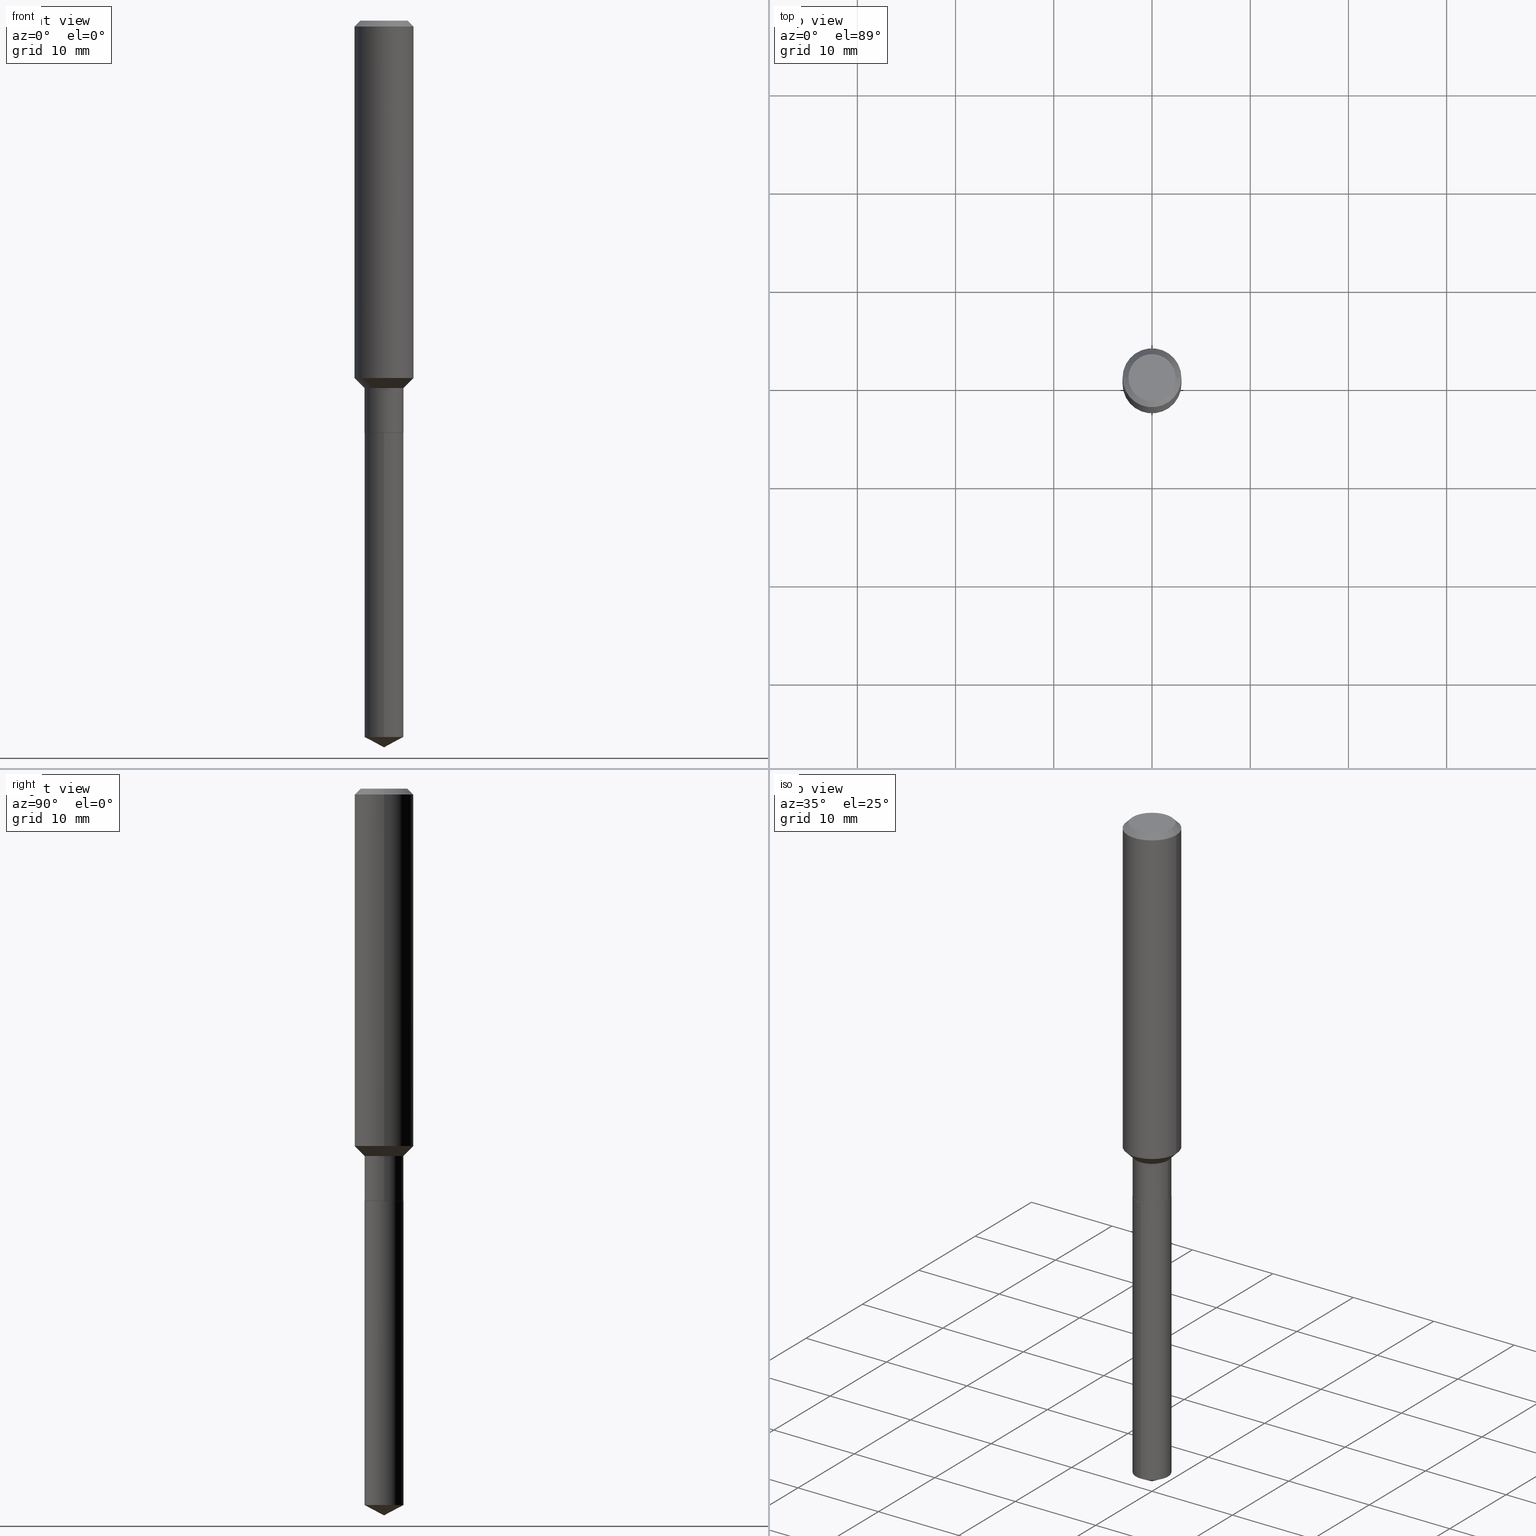
[diagram: canonical four-view strip — front | top / right | iso, engineering-drawing reading convention]
A machine part, canonical four-view strip (front | top / right | iso — engineering-drawing reading convention). The complete STEP part file that produces these views, byte-faithful:
ISO-10303-21;
HEADER;
FILE_DESCRIPTION (( 'STEP AP203' ),
    '1' );
FILE_NAME ('54803.STEP',
    '2024-04-24T15:46:13',
    ( '' ),
    ( '' ),
    'SwSTEP 2.0',
    'SolidWorks 2023',
    '' );
FILE_SCHEMA (( 'CONFIG_CONTROL_DESIGN' ));
ENDSEC;

DATA;
#1 = CALENDAR_DATE ( 2024, 24, 4 ) ;
#2 = CARTESIAN_POINT ( 'NONE',  ( 4.039180827175989564E-29, -5.766879727367222870E-15, -1.651699999999999724 ) ) ;
#3 = ADVANCED_FACE ( 'NONE', ( #420 ), #459, .T. ) ;
#4 = DIRECTION ( 'NONE',  ( 1.000000000000000000, 0.000000000000000000, 0.000000000000000000 ) ) ;
#5 = CARTESIAN_POINT ( 'NONE',  ( -8.915147929202214824E-28, 1.272937490397425409E-13, 36.45707874015747763 ) ) ;
#6 = CC_DESIGN_DATE_AND_TIME_ASSIGNMENT ( #151, #145, ( #445 ) ) ;
#7 = DIRECTION ( 'NONE',  ( 1.000000000000000000, -6.982962677686267499E-15, 4.876176775795936353E-29 ) ) ;
#8 = AXIS2_PLACEMENT_3D ( 'NONE', #2, #113, #77 ) ;
#9 = FACE_OUTER_BOUND ( 'NONE', #258, .T. ) ;
#10 = CALENDAR_DATE ( 2024, 24, 4 ) ;
#11 = DIRECTION ( 'NONE',  ( -2.445385636632390677E-29, 3.491600442376394663E-15, 1.000000000000000000 ) ) ;
#12 = DATE_TIME_ROLE ( 'classification_date' ) ;
#13 = DIRECTION ( 'NONE',  ( 6.273719981627735311E-15, 0.8829475928589254341, 0.4694715627858938034 ) ) ;
#14 = ORIENTED_EDGE ( 'NONE', *, *, #18, .F. ) ;
#15 = CARTESIAN_POINT ( 'NONE',  ( 7.021997449434832588E-29, -1.002584133692533592E-14, -2.871473493387237674 ) ) ;
#16 = CC_DESIGN_SECURITY_CLASSIFICATION ( #46, ( #414 ) ) ;
#17 = EDGE_LOOP ( 'NONE', ( #441, #181, #453, #450 ) ) ;
#18 = EDGE_CURVE ( 'NONE', #173, #254, #191, .T. ) ;
#19 = CYLINDRICAL_SURFACE ( 'NONE', #354, 0.07810000000000000275 ) ;
#20 = DIRECTION ( 'NONE',  ( -2.445385636632390677E-29, 3.491600442376394663E-15, 1.000000000000000000 ) ) ;
#21 = DIRECTION ( 'NONE',  ( -0.7071067811865481278, 7.493145998870357316E-15, 0.7071067811865469066 ) ) ;
#22 = ORIENTED_EDGE ( 'NONE', *, *, #474, .F. ) ;
#23 = CIRCLE ( 'NONE', #413, 0.1180999999999999966 ) ;
#24 = CARTESIAN_POINT ( 'NONE',  ( 0.07760000000000000231, -6.310503371825098014E-15, -1.652199999999999669 ) ) ;
#25 = VERTEX_POINT ( 'NONE', #38 ) ;
#26 = ADVANCED_FACE ( 'NONE', ( #9 ), #265, .F. ) ;
#27 = DIRECTION ( 'NONE',  ( 1.000000000000000000, -6.982962677686266711E-15, 4.876176775795936353E-29 ) ) ;
#28 = ORIENTED_EDGE ( 'NONE', *, *, #143, .T. ) ;
#29 = CARTESIAN_POINT ( 'NONE',  ( -0.1180999999999999966, 7.422191030112725094E-16, -0.02362000000000014435 ) ) ;
#30 = VERTEX_POINT ( 'NONE', #188 ) ;
#31 = AXIS2_PLACEMENT_3D ( 'NONE', #397, #388, #55 ) ;
#32 = AXIS2_PLACEMENT_3D ( 'NONE', #437, #325, #253 ) ;
#33 = CARTESIAN_POINT ( 'NONE',  ( 3.601197363988231369E-29, -5.141555419580415048E-15, -1.472599999999999687 ) ) ;
#34 = ORIENTED_EDGE ( 'NONE', *, *, #341, .F. ) ;
#35 = DIRECTION ( 'NONE',  ( -2.445385636632390677E-29, 3.491600442376394663E-15, 1.000000000000000000 ) ) ;
#36 = DIRECTION ( 'NONE',  ( -2.445468806185136597E-29, 3.491481338843145583E-15, 1.000000000000000000 ) ) ;
#37 = ADVANCED_BREP_SHAPE_REPRESENTATION ( '54803', ( #326, #488, #471 ), #162 ) ;
#38 = CARTESIAN_POINT ( 'NONE',  ( 0.07760000000000000231, -6.310503371825098014E-15, -1.652199999999999669 ) ) ;
#39 = EDGE_CURVE ( 'NONE', #363, #319, #73, .T. ) ;
#40 = VECTOR ( 'NONE', #427, 39.37007874015748143 ) ;
#41 = ORIENTED_EDGE ( 'NONE', *, *, #314, .T. ) ;
#42 = ORIENTED_EDGE ( 'NONE', *, *, #417, .T. ) ;
#43 = CARTESIAN_POINT ( 'NONE',  ( 0.000000000000000000, 0.000000000000000000, 0.000000000000000000 ) ) ;
#44 = ORIENTED_EDGE ( 'NONE', *, *, #289, .T. ) ;
#45 = AXIS2_PLACEMENT_3D ( 'NONE', #462, #375, #70 ) ;
#46 = SECURITY_CLASSIFICATION ( '', '', #224 ) ;
#47 = CARTESIAN_POINT ( 'NONE',  ( 5.776197320209328408E-31, -8.246878922347560526E-17, -0.02362000000000014435 ) ) ;
#48 = DIRECTION ( 'NONE',  ( -6.982962677686266711E-15, -1.000000000000000000, 3.541896320645638966E-15 ) ) ;
#49 = DIRECTION ( 'NONE',  ( -1.000000000000000000, 6.982962677686266711E-15, 0.000000000000000000 ) ) ;
#50 = ADVANCED_FACE ( 'NONE', ( #270 ), #119, .T. ) ;
#51 = AXIS2_PLACEMENT_3D ( 'NONE', #433, #321, #322 ) ;
#52 = CARTESIAN_POINT ( 'NONE',  ( 0.09447999999999998066, -7.704367267948738690E-16, -2.700101262759583929E-17 ) ) ;
#53 = CC_DESIGN_PERSON_AND_ORGANIZATION_ASSIGNMENT ( #76, #486, ( #445 ) ) ;
#54 = DIMENSIONAL_EXPONENTS ( 1.000000000000000000, 0.000000000000000000, 0.000000000000000000, 0.000000000000000000, 0.000000000000000000, 0.000000000000000000, 0.000000000000000000 ) ;
#55 = DIRECTION ( 'NONE',  ( 1.000000000000000000, -6.982962677686269077E-15, 0.000000000000000000 ) ) ;
#56 = DIRECTION ( 'NONE',  ( 1.000000000000000000, -6.982962677686266711E-15, 4.876176775795936353E-29 ) ) ;
#57 = ORIENTED_EDGE ( 'NONE', *, *, #334, .F. ) ;
#58 = CYLINDRICAL_SURFACE ( 'NONE', #422, 0.07810000000000000275 ) ;
#59 = EDGE_CURVE ( 'NONE', #373, #178, #252, .T. ) ;
#60 = ORIENTED_EDGE ( 'NONE', *, *, #383, .T. ) ;
#61 = CARTESIAN_POINT ( 'NONE',  ( 4.040403561579081805E-29, -5.768625468036644373E-15, -1.652199999999999669 ) ) ;
#62 = ORIENTED_EDGE ( 'NONE', *, *, #289, .F. ) ;
#63 = CARTESIAN_POINT ( 'NONE',  ( 3.503378611740825749E-29, -5.001896166026689240E-15, -1.432599999999999651 ) ) ;
#64 = ORIENTED_EDGE ( 'NONE', *, *, #18, .T. ) ;
#65 = CARTESIAN_POINT ( 'NONE',  ( 5.549338766286784966E-16, 0.07809999999999422959, -1.652199999999999891 ) ) ;
#66 = ORIENTED_EDGE ( 'NONE', *, *, #406, .F. ) ;
#67 = VECTOR ( 'NONE', #84, 39.37007874015748143 ) ;
#68 = CIRCLE ( 'NONE', #32, 0.1180999999999999966 ) ;
#69 = PERSON_AND_ORGANIZATION ( #402, #361 ) ;
#70 = DIRECTION ( 'NONE',  ( 1.000000000000000000, -6.982962677686265922E-15, 4.876176775795935793E-29 ) ) ;
#71 = PERSON_AND_ORGANIZATION_ROLE ( 'classification_officer' ) ;
#72 = EDGE_CURVE ( 'NONE', #392, #173, #235, .T. ) ;
#73 = LINE ( 'NONE', #226, #403 ) ;
#74 = DIRECTION ( 'NONE',  ( 0.000000000000000000, 0.000000000000000000, 1.000000000000000000 ) ) ;
#75 = CARTESIAN_POINT ( 'NONE',  ( 0.000000000000000000, 0.000000000000000000, 0.000000000000000000 ) ) ;
#76 = PERSON_AND_ORGANIZATION ( #402, #361 ) ;
#77 = DIRECTION ( 'NONE',  ( 1.000000000000000000, -6.982962677686266711E-15, 0.000000000000000000 ) ) ;
#78 = DATE_AND_TIME ( #1, #371 ) ;
#79 = CARTESIAN_POINT ( 'NONE',  ( 5.776197320209328408E-31, -8.246878922347560526E-17, -0.02362000000000014435 ) ) ;
#80 = DIRECTION ( 'NONE',  ( -6.982962677686265133E-15, -1.000000000000000000, 3.497884755011860410E-15 ) ) ;
#81 = CONICAL_SURFACE ( 'NONE', #489, 0.07760000000000000231, 0.7853981633975507526 ) ;
#82 = CIRCLE ( 'NONE', #285, 0.07810000000000000275 ) ;
#83 = DIRECTION ( 'NONE',  ( 1.000000000000000000, -6.982962677686267499E-15, 4.875432709231658792E-29 ) ) ;
#84 = DIRECTION ( 'NONE',  ( -2.445468806185136877E-29, 3.491481338843145188E-15, 1.000000000000000000 ) ) ;
#85 = EDGE_CURVE ( 'NONE', #173, #392, #139, .T. ) ;
#86 = LINE ( 'NONE', #318, #40 ) ;
#87 = CC_DESIGN_PERSON_AND_ORGANIZATION_ASSIGNMENT ( #483, #110, ( #414 ) ) ;
#88 = EDGE_LOOP ( 'NONE', ( #146, #60, #96, #409 ) ) ;
#89 = COORDINATED_UNIVERSAL_TIME_OFFSET ( 5, 0, .BEHIND. ) ;
#90 = CONICAL_SURFACE ( 'NONE', #99, 74.04434902938190532, 1.082104136236477387 ) ;
#91 = CARTESIAN_POINT ( 'NONE',  ( 0.000000000000000000, 0.000000000000000000, 0.000000000000000000 ) ) ;
#92 = VECTOR ( 'NONE', #408, 39.37007874015748143 ) ;
#93 = ORIENTED_EDGE ( 'NONE', *, *, #417, .F. ) ;
#94 = CARTESIAN_POINT ( 'NONE',  ( 4.040403561579081805E-29, -5.768625468036644373E-15, -1.652199999999999669 ) ) ;
#95 = CARTESIAN_POINT ( 'NONE',  ( 5.549338766287084733E-16, 0.07809999999998999687, -2.871473493387238118 ) ) ;
#96 = ORIENTED_EDGE ( 'NONE', *, *, #306, .T. ) ;
#97 = VECTOR ( 'NONE', #344, 39.37007874015748143 ) ;
#98 = CARTESIAN_POINT ( 'NONE',  ( -0.1180999999999999966, -1.703031506692402969E-15, -0.02362000000000014435 ) ) ;
#99 = AXIS2_PLACEMENT_3D ( 'NONE', #463, #20, #48 ) ;
#100 = ORIENTED_EDGE ( 'NONE', *, *, #189, .F. ) ;
#101 = CARTESIAN_POINT ( 'NONE',  ( 0.000000000000000000, 0.000000000000000000, 0.000000000000000000 ) ) ;
#102 = EDGE_CURVE ( 'NONE', #25, #30, #245, .T. ) ;
#103 = ORIENTED_EDGE ( 'NONE', *, *, #212, .F. ) ;
#104 = DIRECTION ( 'NONE',  ( -2.445468806185136597E-29, 3.491481338843145583E-15, 1.000000000000000000 ) ) ;
#105 = ORIENTED_EDGE ( 'NONE', *, *, #269, .T. ) ;
#106 = CC_DESIGN_DATE_AND_TIME_ASSIGNMENT ( #320, #12, ( #46 ) ) ;
#107 = COORDINATED_UNIVERSAL_TIME_OFFSET ( 5, 0, .BEHIND. ) ;
#108 = ORIENTED_EDGE ( 'NONE', *, *, #259, .F. ) ;
#109 = CIRCLE ( 'NONE', #116, 0.07810000000000000275 ) ;
#110 = PERSON_AND_ORGANIZATION_ROLE ( 'design_supplier' ) ;
#111 = EDGE_LOOP ( 'NONE', ( #41, #267 ) ) ;
#112 = APPLICATION_PROTOCOL_DEFINITION ( 'international standard', 'config_control_design', 1994, #166 ) ;
#113 = DIRECTION ( 'NONE',  ( -2.445468806185136597E-29, 3.491481338843145583E-15, 1.000000000000000000 ) ) ;
#114 = DIRECTION ( 'NONE',  ( -2.445385636632390677E-29, 3.491600442376394663E-15, 1.000000000000000000 ) ) ;
#115 = AXIS2_PLACEMENT_3D ( 'NONE', #231, #382, #385 ) ;
#116 = AXIS2_PLACEMENT_3D ( 'NONE', #293, #248, #175 ) ;
#117 = CARTESIAN_POINT ( 'NONE',  ( 4.040403561579081805E-29, -5.768625468036644373E-15, -1.652199999999999669 ) ) ;
#118 = ORIENTED_EDGE ( 'NONE', *, *, #85, .F. ) ;
#119 = CYLINDRICAL_SURFACE ( 'NONE', #210, 0.07809999999999997500 ) ;
#120 = CARTESIAN_POINT ( 'NONE',  ( 6.603013411620882309E-46, -9.427353171913646324E-32, -2.700101262760083747E-17 ) ) ;
#121 = EDGE_CURVE ( 'NONE', #319, #313, #152, .T. ) ;
#122 = AXIS2_PLACEMENT_3D ( 'NONE', #160, #126, #247 ) ;
#123 = CIRCLE ( 'NONE', #395, 0.07809999999999997500 ) ;
#124 = FACE_OUTER_BOUND ( 'NONE', #291, .T. ) ;
#125 = CC_DESIGN_PERSON_AND_ORGANIZATION_ASSIGNMENT ( #307, #376, ( #308 ) ) ;
#126 = DIRECTION ( 'NONE',  ( 2.438088387897960049E-29, -3.491481338843145188E-15, -1.000000000000000000 ) ) ;
#127 = ORIENTED_EDGE ( 'NONE', *, *, #457, .T. ) ;
#128 = DIRECTION ( 'NONE',  ( -0.7071067811866199593, 7.493145998870616062E-15, 0.7071067811864750752 ) ) ;
#129 = AXIS2_PLACEMENT_3D ( 'NONE', #5, #114, #423 ) ;
#130 = DIRECTION ( 'NONE',  ( 1.000000000000000000, -6.982962677686269077E-15, 0.000000000000000000 ) ) ;
#131 = LOCAL_TIME ( 11, 46, 13.00000000000000000, #240 ) ;
#132 = ADVANCED_FACE ( 'NONE', ( #339 ), #194, .T. ) ;
#133 = DIRECTION ( 'NONE',  ( 1.000000000000000000, -6.982962677686267499E-15, 4.875432709231658792E-29 ) ) ;
#134 = ORIENTED_EDGE ( 'NONE', *, *, #85, .T. ) ;
#135 = CYLINDRICAL_SURFACE ( 'NONE', #387, 0.1181000000000000799 ) ;
#136 = EDGE_LOOP ( 'NONE', ( #213, #398, #22, #204 ) ) ;
#137 = ADVANCED_FACE ( 'NONE', ( #227 ), #317, .T. ) ;
#138 = CARTESIAN_POINT ( 'NONE',  ( -0.07809999999999997500, -4.586621542951776389E-15, -1.472599999999999687 ) ) ;
#139 = CIRCLE ( 'NONE', #8, 0.07810000000000000275 ) ;
#140 = ORIENTED_EDGE ( 'NONE', *, *, #383, .F. ) ;
#141 = LOCAL_TIME ( 11, 46, 13.00000000000000000, #89 ) ;
#142 = LINE ( 'NONE', #329, #195 ) ;
#143 = EDGE_CURVE ( 'NONE', #30, #25, #271, .T. ) ;
#144 = EDGE_LOOP ( 'NONE', ( #336, #280, #108 ) ) ;
#145 = DATE_TIME_ROLE ( 'creation_date' ) ;
#146 = ORIENTED_EDGE ( 'NONE', *, *, #428, .F. ) ;
#147 = APPROVAL_STATUS ( 'not_yet_approved' ) ;
#148 = DIRECTION ( 'NONE',  ( 1.000000000000000000, -6.982962677686266711E-15, 0.000000000000000000 ) ) ;
#149 = EDGE_CURVE ( 'NONE', #30, #392, #346, .T. ) ;
#150 = CC_DESIGN_APPROVAL ( #161, ( #414 ) ) ;
#151 = DATE_AND_TIME ( #260, #490 ) ;
#152 = LINE ( 'NONE', #155, #333 ) ;
#153 = VERTEX_POINT ( 'NONE', #52 ) ;
#154 = APPROVAL_ROLE ( '' ) ;
#155 = CARTESIAN_POINT ( 'NONE',  ( -5.453693851272569087E-16, -0.07810000000000577591, -1.652199999999999447 ) ) ;
#156 = CONICAL_SURFACE ( 'NONE', #434, 0.07809999999999997500, 0.7853981633974491672 ) ;
#157 = CC_DESIGN_APPROVAL ( #391, ( #445 ) ) ;
#158 = ORIENTED_EDGE ( 'NONE', *, *, #238, .F. ) ;
#159 = CARTESIAN_POINT ( 'NONE',  ( 0.1181000000000001632, -5.826584058261438292E-15, -1.432599999999999651 ) ) ;
#160 = CARTESIAN_POINT ( 'NONE',  ( 3.301506705810441154E-46, -4.713676585956823162E-32, -1.350050631380041873E-17 ) ) ;
#161 = APPROVAL ( #147, 'UNSPECIFIED' ) ;
#162 =( GEOMETRIC_REPRESENTATION_CONTEXT ( 3 ) GLOBAL_UNCERTAINTY_ASSIGNED_CONTEXT ( ( #209 ) ) GLOBAL_UNIT_ASSIGNED_CONTEXT ( ( #182, #264, #381 ) ) REPRESENTATION_CONTEXT ( 'NONE', 'WORKASPACE' ) );
#163 = DIRECTION ( 'NONE',  ( -6.982962677686265133E-15, -1.000000000000000000, 0.000000000000000000 ) ) ;
#164 = EDGE_LOOP ( 'NONE', ( #158, #288, #64, #140 ) ) ;
#165 = CARTESIAN_POINT ( 'NONE',  ( 0.07810000000000000275, -6.312249112494520306E-15, -1.651699999999999724 ) ) ;
#166 = APPLICATION_CONTEXT ( 'configuration controlled 3d designs of mechanical parts and assemblies' ) ;
#167 = LINE ( 'NONE', #469, #465 ) ;
#168 = ADVANCED_FACE ( 'NONE', ( #203 ), #357, .T. ) ;
#169 = CARTESIAN_POINT ( 'NONE',  ( 0.000000000000000000, 0.000000000000000000, 0.000000000000000000 ) ) ;
#170 = APPROVAL_PERSON_ORGANIZATION ( #237, #356, #432 ) ;
#171 = ORIENTED_EDGE ( 'NONE', *, *, #102, .F. ) ;
#172 = DIRECTION ( 'NONE',  ( -2.445385636632390677E-29, 3.491600442376394663E-15, 1.000000000000000000 ) ) ;
#173 = VERTEX_POINT ( 'NONE', #165 ) ;
#174 = ADVANCED_FACE ( 'NONE', ( #243 ), #19, .T. ) ;
#175 = DIRECTION ( 'NONE',  ( -6.982962677686265133E-15, -1.000000000000000000, 0.000000000000000000 ) ) ;
#176 = ORIENTED_EDGE ( 'NONE', *, *, #274, .F. ) ;
#177 = DIRECTION ( 'NONE',  ( -2.445468806185136597E-29, 3.491481338843145583E-15, 1.000000000000000000 ) ) ;
#178 = VERTEX_POINT ( 'NONE', #159 ) ;
#179 = AXIS2_PLACEMENT_3D ( 'NONE', #63, #217, #190 ) ;
#180 = DIRECTION ( 'NONE',  ( 1.000000000000000000, -6.982962677686269077E-15, 0.000000000000000000 ) ) ;
#181 = ORIENTED_EDGE ( 'NONE', *, *, #345, .T. ) ;
#182 =( CONVERSION_BASED_UNIT ( 'INCH', #454 ) LENGTH_UNIT ( ) NAMED_UNIT ( #54 ) );
#183 = ADVANCED_FACE ( 'NONE', ( #124 ), #312, .T. ) ;
#184 = CARTESIAN_POINT ( 'NONE',  ( 4.040403561579081805E-29, -5.768625468036644373E-15, -1.652199999999999669 ) ) ;
#185 = LINE ( 'NONE', #299, #355 ) ;
#186 = DIRECTION ( 'NONE',  ( -2.445468806185136597E-29, 3.491481338843145583E-15, 1.000000000000000000 ) ) ;
#187 = CIRCLE ( 'NONE', #31, 0.07809999999999997500 ) ;
#188 = CARTESIAN_POINT ( 'NONE',  ( -0.07760000000000000231, -5.214595077912695412E-15, -1.652199999999999669 ) ) ;
#189 = EDGE_CURVE ( 'NONE', #332, #301, #23, .T. ) ;
#190 = DIRECTION ( 'NONE',  ( 1.000000000000000000, -6.982962677686263555E-15, 0.000000000000000000 ) ) ;
#191 = LINE ( 'NONE', #233, #97 ) ;
#192 = APPROVAL_DATE_TIME ( #415, #161 ) ;
#193 = ORIENTED_EDGE ( 'NONE', *, *, #428, .T. ) ;
#194 = CONICAL_SURFACE ( 'NONE', #480, 0.1180999999999999966, 0.7853981633974460586 ) ;
#195 = VECTOR ( 'NONE', #286, 39.37007874015748143 ) ;
#196 = FACE_OUTER_BOUND ( 'NONE', #111, .T. ) ;
#197 = DIRECTION ( 'NONE',  ( 2.445468806185136597E-29, -3.491481338843145583E-15, -1.000000000000000000 ) ) ;
#198 = ADVANCED_FACE ( 'NONE', ( #316 ), #81, .T. ) ;
#199 = DESIGN_CONTEXT ( 'detailed design', #166, 'design' ) ;
#200 = CARTESIAN_POINT ( 'NONE',  ( 5.549338766287085720E-16, 0.07809999999999422959, -1.652199999999999891 ) ) ;
#201 = AXIS2_PLACEMENT_3D ( 'NONE', #234, #104, #133 ) ;
#202 = VECTOR ( 'NONE', #21, 39.37007874015748143 ) ;
#203 = FACE_OUTER_BOUND ( 'NONE', #164, .T. ) ;
#204 = ORIENTED_EDGE ( 'NONE', *, *, #121, .F. ) ;
#205 = EDGE_CURVE ( 'NONE', #256, #313, #470, .T. ) ;
#206 = CARTESIAN_POINT ( 'NONE',  ( -0.07760000000000000231, -5.217244305086806613E-15, -1.652199999999999669 ) ) ;
#207 = LINE ( 'NONE', #24, #92 ) ;
#208 = ORIENTED_EDGE ( 'NONE', *, *, #143, .F. ) ;
#209 = UNCERTAINTY_MEASURE_WITH_UNIT (LENGTH_MEASURE( 1.000000000000000082E-05 ), #182, 'distance_accuracy_value', 'NONE');
#210 = AXIS2_PLACEMENT_3D ( 'NONE', #75, #186, #7 ) ;
#211 = DIRECTION ( 'NONE',  ( -2.445468806185136597E-29, 3.491481338843145583E-15, 1.000000000000000000 ) ) ;
#212 = EDGE_CURVE ( 'NONE', #363, #327, #429, .T. ) ;
#213 = ORIENTED_EDGE ( 'NONE', *, *, #259, .T. ) ;
#214 = FACE_OUTER_BOUND ( 'NONE', #296, .T. ) ;
#215 = EDGE_LOOP ( 'NONE', ( #103, #222, #262 ) ) ;
#216 = CC_DESIGN_PERSON_AND_ORGANIZATION_ASSIGNMENT ( #69, #460, ( #414 ) ) ;
#217 = DIRECTION ( 'NONE',  ( -2.445468806185136597E-29, 3.491481338843145583E-15, 1.000000000000000000 ) ) ;
#218 = ORIENTED_EDGE ( 'NONE', *, *, #205, .T. ) ;
#219 = DIRECTION ( 'NONE',  ( -6.982962677686265133E-15, -1.000000000000000000, 3.497884755011860410E-15 ) ) ;
#220 = AXIS2_PLACEMENT_3D ( 'NONE', #458, #305, #148 ) ;
#221 = APPLICATION_CONTEXT ( 'configuration controlled 3d designs of mechanical parts and assemblies' ) ;
#222 = ORIENTED_EDGE ( 'NONE', *, *, #39, .T. ) ;
#223 = APPROVAL_PERSON_ORGANIZATION ( #452, #391, #456 ) ;
#224 = SECURITY_CLASSIFICATION_LEVEL ( 'unclassified' ) ;
#225 = DIRECTION ( 'NONE',  ( -2.445468806185136597E-29, 3.491481338843145583E-15, 1.000000000000000000 ) ) ;
#226 = CARTESIAN_POINT ( 'NONE',  ( 7.123408359510154235E-29, -1.017103208864243778E-14, -2.912999999999999812 ) ) ;
#227 = FACE_OUTER_BOUND ( 'NONE', #144, .T. ) ;
#228 = CIRCLE ( 'NONE', #276, 0.07810000000000000275 ) ;
#229 = CC_DESIGN_APPROVAL ( #356, ( #46 ) ) ;
#230 = MECHANICAL_CONTEXT ( 'NONE', #221, 'mechanical' ) ;
#231 = CARTESIAN_POINT ( 'NONE',  ( 4.040403561579081805E-29, -5.768625468036644373E-15, -1.652199999999999669 ) ) ;
#232 = COORDINATED_UNIVERSAL_TIME_OFFSET ( 5, 0, .BEHIND. ) ;
#233 = CARTESIAN_POINT ( 'NONE',  ( 0.07809999999999997500, -5.453693851272973378E-16, 3.808294061896625002E-30 ) ) ;
#234 = CARTESIAN_POINT ( 'NONE',  ( 6.603013411620882309E-46, -9.427353171913646324E-32, -2.700101262760083747E-17 ) ) ;
#235 = CIRCLE ( 'NONE', #220, 0.07810000000000000275 ) ;
#236 = CIRCLE ( 'NONE', #179, 0.1181000000000001632 ) ;
#237 = PERSON_AND_ORGANIZATION ( #402, #361 ) ;
#238 = EDGE_CURVE ( 'NONE', #392, #353, #468, .T. ) ;
#239 = CARTESIAN_POINT ( 'NONE',  ( 0.07809999999999997500, -5.686924804707712484E-15, -1.472599999999999687 ) ) ;
#240 = COORDINATED_UNIVERSAL_TIME_OFFSET ( 5, 0, .BEHIND. ) ;
#241 = CARTESIAN_POINT ( 'NONE',  ( 4.040403561579081805E-29, -5.768625468036644373E-15, -1.652199999999999669 ) ) ;
#242 = ORIENTED_EDGE ( 'NONE', *, *, #306, .F. ) ;
#243 = FACE_OUTER_BOUND ( 'NONE', #136, .T. ) ;
#244 = ORIENTED_EDGE ( 'NONE', *, *, #269, .F. ) ;
#245 = CIRCLE ( 'NONE', #300, 0.07760000000000000231 ) ;
#246 = DATE_AND_TIME ( #10, #141 ) ;
#247 = DIRECTION ( 'NONE',  ( -1.000000000000000000, 6.982962677686265922E-15, -4.876176775795935793E-29 ) ) ;
#248 = DIRECTION ( 'NONE',  ( -2.445385636632390677E-29, 3.491600442376394663E-15, 1.000000000000000000 ) ) ;
#249 = CARTESIAN_POINT ( 'NONE',  ( -0.1181000000000001632, -4.162745195094008677E-15, -1.432599999999999651 ) ) ;
#250 = EDGE_LOOP ( 'NONE', ( #401, #28, #42, #298 ) ) ;
#251 = CLOSED_SHELL ( 'NONE', ( #174, #137, #303, #351, #377 ) ) ;
#252 = CIRCLE ( 'NONE', #292, 0.1181000000000001632 ) ;
#253 = DIRECTION ( 'NONE',  ( 1.000000000000000000, -6.982962677686266711E-15, 0.000000000000000000 ) ) ;
#254 = VERTEX_POINT ( 'NONE', #239 ) ;
#255 = CARTESIAN_POINT ( 'NONE',  ( 3.601197363988231369E-29, -5.141555419580415048E-15, -1.472599999999999687 ) ) ;
#256 = VERTEX_POINT ( 'NONE', #200 ) ;
#257 = LINE ( 'NONE', #138, #202 ) ;
#258 = EDGE_LOOP ( 'NONE', ( #171, #208 ) ) ;
#259 = EDGE_CURVE ( 'NONE', #319, #327, #228, .T. ) ;
#260 = CALENDAR_DATE ( 2024, 24, 4 ) ;
#261 = AXIS2_PLACEMENT_3D ( 'NONE', #311, #225, #309 ) ;
#262 = ORIENTED_EDGE ( 'NONE', *, *, #345, .F. ) ;
#263 = VECTOR ( 'NONE', #172, 39.37007874015748143 ) ;
#264 =( NAMED_UNIT ( * ) PLANE_ANGLE_UNIT ( ) SI_UNIT ( $, .RADIAN. ) );
#265 = PLANE ( 'NONE',  #45 ) ;
#266 = DIRECTION ( 'NONE',  ( -2.445468806185136877E-29, 3.491481338843145188E-15, 1.000000000000000000 ) ) ;
#267 = ORIENTED_EDGE ( 'NONE', *, *, #274, .T. ) ;
#268 = DIRECTION ( 'NONE',  ( -6.982962677686265133E-15, -1.000000000000000000, 3.497884755011860410E-15 ) ) ;
#269 = EDGE_CURVE ( 'NONE', #178, #301, #86, .T. ) ;
#270 = FACE_OUTER_BOUND ( 'NONE', #482, .T. ) ;
#271 = CIRCLE ( 'NONE', #115, 0.07760000000000000231 ) ;
#272 = ORIENTED_EDGE ( 'NONE', *, *, #457, .F. ) ;
#273 = DIRECTION ( 'NONE',  ( 0.7071067811865481278, -2.468850131082263371E-15, 0.7071067811865469066 ) ) ;
#274 = EDGE_CURVE ( 'NONE', #153, #438, #394, .T. ) ;
#275 = CARTESIAN_POINT ( 'NONE',  ( -0.07809999999999997500, 5.549338766286380675E-16, -3.841688305489080574E-30 ) ) ;
#276 = AXIS2_PLACEMENT_3D ( 'NONE', #15, #11, #163 ) ;
#277 = DIRECTION ( 'NONE',  ( -2.445468806185136597E-29, 3.491481338843145583E-15, 1.000000000000000000 ) ) ;
#278 = ORIENTED_EDGE ( 'NONE', *, *, #484, .T. ) ;
#279 = CARTESIAN_POINT ( 'NONE',  ( 0.1180999999999999966, -9.071566814582237199E-16, -0.02362000000000014435 ) ) ;
#280 = ORIENTED_EDGE ( 'NONE', *, *, #212, .T. ) ;
#281 = APPROVAL_STATUS ( 'not_yet_approved' ) ;
#282 = CARTESIAN_POINT ( 'NONE',  ( 5.776197320209328408E-31, -8.246878922347560526E-17, -0.02362000000000014435 ) ) ;
#283 = ADVANCED_FACE ( 'NONE', ( #196 ), #349, .F. ) ;
#284 = VECTOR ( 'NONE', #13, 39.37007874015748143 ) ;
#285 = AXIS2_PLACEMENT_3D ( 'NONE', #117, #35, #268 ) ;
#286 = DIRECTION ( 'NONE',  ( 0.7071067811865459074, -7.319954787623249734E-15, -0.7071067811865491270 ) ) ;
#287 = DIRECTION ( 'NONE',  ( -2.445385636632390677E-29, 3.491600442376394663E-15, 1.000000000000000000 ) ) ;
#288 = ORIENTED_EDGE ( 'NONE', *, *, #72, .T. ) ;
#289 = EDGE_CURVE ( 'NONE', #254, #353, #187, .T. ) ;
#290 = CARTESIAN_POINT ( 'NONE',  ( -0.07810000000000000275, -4.899283696845180694E-15, -1.651699999999999724 ) ) ;
#291 = EDGE_LOOP ( 'NONE', ( #66, #368, #485, #473 ) ) ;
#292 = AXIS2_PLACEMENT_3D ( 'NONE', #343, #36, #455 ) ;
#293 = CARTESIAN_POINT ( 'NONE',  ( 7.021997449434832588E-29, -1.002584133692533592E-14, -2.871473493387237674 ) ) ;
#294 = EDGE_LOOP ( 'NONE', ( #127, #278, #34, #244 ) ) ;
#295 = DIRECTION ( 'NONE',  ( 1.000000000000000000, -6.982962677686260400E-15, 0.000000000000000000 ) ) ;
#296 = EDGE_LOOP ( 'NONE', ( #448, #446, #118, #93 ) ) ;
#297 = APPLICATION_PROTOCOL_DEFINITION ( 'international standard', 'config_control_design', 1994, #221 ) ;
#298 = ORIENTED_EDGE ( 'NONE', *, *, #72, .F. ) ;
#299 = CARTESIAN_POINT ( 'NONE',  ( -0.1181000000000000799, 8.391509709326788873E-16, -5.809262341591047988E-30 ) ) ;
#300 = AXIS2_PLACEMENT_3D ( 'NONE', #184, #425, #340 ) ;
#301 = VERTEX_POINT ( 'NONE', #279 ) ;
#302 = AXIS2_PLACEMENT_3D ( 'NONE', #337, #177, #295 ) ;
#303 = ADVANCED_FACE ( 'NONE', ( #393 ), #90, .T. ) ;
#304 = PERSON_AND_ORGANIZATION ( #402, #361 ) ;
#305 = DIRECTION ( 'NONE',  ( -2.445468806185136597E-29, 3.491481338843145583E-15, 1.000000000000000000 ) ) ;
#306 = EDGE_CURVE ( 'NONE', #254, #178, #167, .T. ) ;
#307 = PERSON_AND_ORGANIZATION ( #402, #361 ) ;
#308 = PRODUCT ( '54803', '54803', '', ( #230 ) ) ;
#309 = DIRECTION ( 'NONE',  ( 1.000000000000000000, -6.982962677686269077E-15, 0.000000000000000000 ) ) ;
#310 = CALENDAR_DATE ( 2024, 24, 4 ) ;
#311 = CARTESIAN_POINT ( 'NONE',  ( 3.601197363988231369E-29, -5.141555419580415048E-15, -1.472599999999999687 ) ) ;
#312 = CONICAL_SURFACE ( 'NONE', #451, 0.1180999999999999966, 0.7853981633974460586 ) ;
#313 = VERTEX_POINT ( 'NONE', #426 ) ;
#314 = EDGE_CURVE ( 'NONE', #438, #153, #379, .T. ) ;
#315 = DIRECTION ( 'NONE',  ( -2.445468806185136597E-29, 3.491481338843145583E-15, 1.000000000000000000 ) ) ;
#316 = FACE_OUTER_BOUND ( 'NONE', #250, .T. ) ;
#317 = CONICAL_SURFACE ( 'NONE', #129, 74.04434902938190532, 1.082104136236477387 ) ;
#318 = CARTESIAN_POINT ( 'NONE',  ( 0.1181000000000000799, -8.246878922347486570E-16, 5.758764772215004644E-30 ) ) ;
#319 = VERTEX_POINT ( 'NONE', #331 ) ;
#320 = DATE_AND_TIME ( #348, #131 ) ;
#321 = DIRECTION ( 'NONE',  ( -2.445385636632390677E-29, 3.491600442376394663E-15, 1.000000000000000000 ) ) ;
#322 = DIRECTION ( 'NONE',  ( -6.982962677686265133E-15, -1.000000000000000000, 3.497884755011860410E-15 ) ) ;
#323 = AXIS2_PLACEMENT_3D ( 'NONE', #91, #386, #431 ) ;
#324 = CONICAL_SURFACE ( 'NONE', #302, 0.07760000000000000231, 0.7853981633975507526 ) ;
#325 = DIRECTION ( 'NONE',  ( -2.445468806185136597E-29, 3.491481338843145583E-15, 1.000000000000000000 ) ) ;
#326 = MANIFOLD_SOLID_BREP ( 'Body-Move/Copy2[1]', #251 ) ;
#327 = VERTEX_POINT ( 'NONE', #95 ) ;
#328 = ADVANCED_FACE ( 'NONE', ( #372 ), #156, .T. ) ;
#329 = CARTESIAN_POINT ( 'NONE',  ( 0.1180999999999999966, -8.926936027602933910E-16, -0.02362000000000014435 ) ) ;
#330 = EDGE_LOOP ( 'NONE', ( #176, #476, #412, #57 ) ) ;
#331 = CARTESIAN_POINT ( 'NONE',  ( -5.453693851272272278E-16, -0.07810000000001003639, -2.871473493387237230 ) ) ;
#332 = VERTEX_POINT ( 'NONE', #98 ) ;
#333 = VECTOR ( 'NONE', #380, 39.37007874015748143 ) ;
#334 = EDGE_CURVE ( 'NONE', #438, #332, #362, .T. ) ;
#335 = DIRECTION ( 'NONE',  ( 2.445385636632390397E-29, -3.491600442376394663E-15, -1.000000000000000000 ) ) ;
#336 = ORIENTED_EDGE ( 'NONE', *, *, #39, .F. ) ;
#337 = CARTESIAN_POINT ( 'NONE',  ( 4.040403561579081805E-29, -5.768625468036644373E-15, -1.652199999999999669 ) ) ;
#338 = EDGE_LOOP ( 'NONE', ( #44, #193, #272, #242 ) ) ;
#339 = FACE_OUTER_BOUND ( 'NONE', #330, .T. ) ;
#340 = DIRECTION ( 'NONE',  ( 1.000000000000000000, -6.982962677686260400E-15, 0.000000000000000000 ) ) ;
#341 = EDGE_CURVE ( 'NONE', #301, #332, #68, .T. ) ;
#342 =( LENGTH_UNIT ( ) NAMED_UNIT ( * ) SI_UNIT ( $, .METRE. ) );
#343 = CARTESIAN_POINT ( 'NONE',  ( 3.503378611740825749E-29, -5.001896166026689240E-15, -1.432599999999999651 ) ) ;
#344 = DIRECTION ( 'NONE',  ( -2.445468806185136877E-29, 3.491481338843145188E-15, 1.000000000000000000 ) ) ;
#345 = EDGE_CURVE ( 'NONE', #327, #319, #109, .T. ) ;
#346 = LINE ( 'NONE', #206, #442 ) ;
#347 = AXIS2_PLACEMENT_3D ( 'NONE', #61, #335, #447 ) ;
#348 = CALENDAR_DATE ( 2024, 24, 4 ) ;
#349 = PLANE ( 'NONE',  #122 ) ;
#350 = CARTESIAN_POINT ( 'NONE',  ( 4.040403561579081805E-29, -5.768625468036644373E-15, -1.652199999999999669 ) ) ;
#351 = ADVANCED_FACE ( 'NONE', ( #472 ), #58, .T. ) ;
#352 = CARTESIAN_POINT ( 'NONE',  ( 7.123685594875214249E-29, -1.017063852292717036E-14, -2.912999999999999812 ) ) ;
#353 = VERTEX_POINT ( 'NONE', #410 ) ;
#354 = AXIS2_PLACEMENT_3D ( 'NONE', #241, #466, #80 ) ;
#355 = VECTOR ( 'NONE', #266, 39.37007874015748143 ) ;
#356 = APPROVAL ( #281, 'UNSPECIFIED' ) ;
#357 = CYLINDRICAL_SURFACE ( 'NONE', #323, 0.07809999999999997500 ) ;
#358 = DIRECTION ( 'NONE',  ( 1.000000000000000000, -6.982962677686260400E-15, 0.000000000000000000 ) ) ;
#359 = LINE ( 'NONE', #65, #263 ) ;
#360 = ORIENTED_EDGE ( 'NONE', *, *, #238, .T. ) ;
#361 = ORGANIZATION ( 'UNSPECIFIED', 'UNSPECIFIED', '' ) ;
#362 = LINE ( 'NONE', #29, #370 ) ;
#363 = VERTEX_POINT ( 'NONE', #405 ) ;
#364 = FACE_OUTER_BOUND ( 'NONE', #294, .T. ) ;
#365 = EDGE_LOOP ( 'NONE', ( #479, #218 ) ) ;
#366 = ADVANCED_FACE ( 'NONE', ( #214 ), #324, .T. ) ;
#367 = FACE_OUTER_BOUND ( 'NONE', #378, .T. ) ;
#368 = ORIENTED_EDGE ( 'NONE', *, *, #314, .F. ) ;
#369 = PRODUCT_RELATED_PRODUCT_CATEGORY ( 'detail', '', ( #308 ) ) ;
#370 = VECTOR ( 'NONE', #399, 39.37007874015748143 ) ;
#371 = LOCAL_TIME ( 11, 46, 13.00000000000000000, #107 ) ;
#372 = FACE_OUTER_BOUND ( 'NONE', #88, .T. ) ;
#373 = VERTEX_POINT ( 'NONE', #249 ) ;
#374 = PERSON_AND_ORGANIZATION ( #402, #361 ) ;
#375 = DIRECTION ( 'NONE',  ( -2.438088387897960049E-29, 3.491481338843145188E-15, 1.000000000000000000 ) ) ;
#376 = PERSON_AND_ORGANIZATION_ROLE ( 'design_owner' ) ;
#377 = ADVANCED_FACE ( 'NONE', ( #475 ), #478, .F. ) ;
#378 = EDGE_LOOP ( 'NONE', ( #419, #407, #105, #100 ) ) ;
#379 = CIRCLE ( 'NONE', #201, 0.09447999999999998066 ) ;
#380 = DIRECTION ( 'NONE',  ( -2.445385636632390677E-29, 3.491600442376394663E-15, 1.000000000000000000 ) ) ;
#381 =( NAMED_UNIT ( * ) SI_UNIT ( $, .STERADIAN. ) SOLID_ANGLE_UNIT ( ) );
#382 = DIRECTION ( 'NONE',  ( -2.445468806185136597E-29, 3.491481338843145583E-15, 1.000000000000000000 ) ) ;
#383 = EDGE_CURVE ( 'NONE', #353, #254, #123, .T. ) ;
#384 = COORDINATED_UNIVERSAL_TIME_OFFSET ( 5, 0, .BEHIND. ) ;
#385 = DIRECTION ( 'NONE',  ( 1.000000000000000000, -6.982962677686260400E-15, 0.000000000000000000 ) ) ;
#386 = DIRECTION ( 'NONE',  ( -2.445468806185136597E-29, 3.491481338843145583E-15, 1.000000000000000000 ) ) ;
#387 = AXIS2_PLACEMENT_3D ( 'NONE', #101, #444, #56 ) ;
#388 = DIRECTION ( 'NONE',  ( -2.445468806185136597E-29, 3.491481338843145583E-15, 1.000000000000000000 ) ) ;
#389 = ADVANCED_FACE ( 'NONE', ( #367 ), #135, .T. ) ;
#390 = DIRECTION ( 'NONE',  ( 1.000000000000000000, -6.982962677686266711E-15, 0.000000000000000000 ) ) ;
#391 = APPROVAL ( #449, 'UNSPECIFIED' ) ;
#392 = VERTEX_POINT ( 'NONE', #290 ) ;
#393 = FACE_OUTER_BOUND ( 'NONE', #215, .T. ) ;
#394 = CIRCLE ( 'NONE', #421, 0.09447999999999998066 ) ;
#395 = AXIS2_PLACEMENT_3D ( 'NONE', #33, #400, #180 ) ;
#396 = APPROVAL_DATE_TIME ( #246, #356 ) ;
#397 = CARTESIAN_POINT ( 'NONE',  ( 3.601197363988231369E-29, -5.141555419580415048E-15, -1.472599999999999687 ) ) ;
#398 = ORIENTED_EDGE ( 'NONE', *, *, #424, .T. ) ;
#399 = DIRECTION ( 'NONE',  ( -0.7071067811865459074, 2.468850131082240100E-15, -0.7071067811865491270 ) ) ;
#400 = DIRECTION ( 'NONE',  ( -2.445468806185136597E-29, 3.491481338843145583E-15, 1.000000000000000000 ) ) ;
#401 = ORIENTED_EDGE ( 'NONE', *, *, #149, .F. ) ;
#402 = PERSON ( 'UNSPECIFIED', 'UNSPECIFIED', 'UNSPECIFIED', ('UNSPECIFIED'), ('UNSPECIFIED'), ('UNSPECIFIED') ) ;
#403 = VECTOR ( 'NONE', #487, 39.37007874015748854 ) ;
#404 = AXIS2_PLACEMENT_3D ( 'NONE', #169, #436, #27 ) ;
#405 = CARTESIAN_POINT ( 'NONE',  ( 7.123408359510154235E-29, -1.017103208864243778E-14, -2.912999999999999812 ) ) ;
#406 = EDGE_CURVE ( 'NONE', #153, #301, #142, .T. ) ;
#407 = ORIENTED_EDGE ( 'NONE', *, *, #59, .T. ) ;
#408 = DIRECTION ( 'NONE',  ( 0.7071067811866199593, -2.468850131083015945E-15, 0.7071067811864750752 ) ) ;
#409 = ORIENTED_EDGE ( 'NONE', *, *, #59, .F. ) ;
#410 = CARTESIAN_POINT ( 'NONE',  ( -0.07809999999999997500, -4.899283696845180694E-15, -1.472599999999999687 ) ) ;
#411 = PRODUCT_DEFINITION_SHAPE ( 'NONE', 'NONE',  #445 ) ;
#412 = ORIENTED_EDGE ( 'NONE', *, *, #341, .T. ) ;
#413 = AXIS2_PLACEMENT_3D ( 'NONE', #282, #277, #390 ) ;
#414 = PRODUCT_DEFINITION_FORMATION_WITH_SPECIFIED_SOURCE ( 'ANY', '', #308, .NOT_KNOWN. ) ;
#415 = DATE_AND_TIME ( #310, #435 ) ;
#416 = DIRECTION ( 'NONE',  ( -1.000000000000000000, 6.982962677686266711E-15, 0.000000000000000000 ) ) ;
#417 = EDGE_CURVE ( 'NONE', #25, #173, #207, .T. ) ;
#418 = APPROVAL_DATE_TIME ( #78, #391 ) ;
#419 = ORIENTED_EDGE ( 'NONE', *, *, #484, .F. ) ;
#420 = FACE_OUTER_BOUND ( 'NONE', #338, .T. ) ;
#421 = AXIS2_PLACEMENT_3D ( 'NONE', #120, #467, #83 ) ;
#422 = AXIS2_PLACEMENT_3D ( 'NONE', #94, #287, #219 ) ;
#423 = DIRECTION ( 'NONE',  ( -6.982962677686266711E-15, -1.000000000000000000, 3.541896320645638966E-15 ) ) ;
#424 = EDGE_CURVE ( 'NONE', #327, #256, #359, .T. ) ;
#425 = DIRECTION ( 'NONE',  ( -2.445468806185136597E-29, 3.491481338843145583E-15, 1.000000000000000000 ) ) ;
#426 = CARTESIAN_POINT ( 'NONE',  ( -5.453693851272569087E-16, -0.07810000000000577591, -1.652199999999999447 ) ) ;
#427 = DIRECTION ( 'NONE',  ( -2.445468806185136877E-29, 3.491481338843145188E-15, 1.000000000000000000 ) ) ;
#428 = EDGE_CURVE ( 'NONE', #353, #373, #257, .T. ) ;
#429 = LINE ( 'NONE', #352, #284 ) ;
#430 = SHAPE_DEFINITION_REPRESENTATION ( #411, #37 ) ;
#431 = DIRECTION ( 'NONE',  ( 1.000000000000000000, -6.982962677686267499E-15, 4.876176775795936353E-29 ) ) ;
#432 = APPROVAL_ROLE ( '' ) ;
#433 = CARTESIAN_POINT ( 'NONE',  ( 4.040403561579081805E-29, -5.768625468036644373E-15, -1.652199999999999669 ) ) ;
#434 = AXIS2_PLACEMENT_3D ( 'NONE', #255, #211, #130 ) ;
#435 = LOCAL_TIME ( 11, 46, 13.00000000000000000, #384 ) ;
#436 = DIRECTION ( 'NONE',  ( -2.445468806185136597E-29, 3.491481338843145583E-15, 1.000000000000000000 ) ) ;
#437 = CARTESIAN_POINT ( 'NONE',  ( 5.776197320209328408E-31, -8.246878922347560526E-17, -0.02362000000000014435 ) ) ;
#438 = VERTEX_POINT ( 'NONE', #440 ) ;
#439 = ADVANCED_FACE ( 'NONE', ( #364 ), #481, .T. ) ;
#440 = CARTESIAN_POINT ( 'NONE',  ( -0.09447999999999998066, 7.009847083995354710E-16, -2.700101262760559836E-17 ) ) ;
#441 = ORIENTED_EDGE ( 'NONE', *, *, #424, .F. ) ;
#442 = VECTOR ( 'NONE', #128, 39.37007874015748143 ) ;
#443 = APPROVAL_PERSON_ORGANIZATION ( #304, #161, #154 ) ;
#444 = DIRECTION ( 'NONE',  ( -2.445468806185136597E-29, 3.491481338843145583E-15, 1.000000000000000000 ) ) ;
#445 = PRODUCT_DEFINITION ( 'UNKNOWN', '', #414, #199 ) ;
#446 = ORIENTED_EDGE ( 'NONE', *, *, #149, .T. ) ;
#447 = DIRECTION ( 'NONE',  ( 6.982962677686265922E-15, 1.000000000000000000, -3.491600442376394663E-15 ) ) ;
#448 = ORIENTED_EDGE ( 'NONE', *, *, #102, .T. ) ;
#449 = APPROVAL_STATUS ( 'not_yet_approved' ) ;
#450 = ORIENTED_EDGE ( 'NONE', *, *, #205, .F. ) ;
#451 = AXIS2_PLACEMENT_3D ( 'NONE', #47, #197, #49 ) ;
#452 = PERSON_AND_ORGANIZATION ( #402, #361 ) ;
#453 = ORIENTED_EDGE ( 'NONE', *, *, #121, .T. ) ;
#454 = LENGTH_MEASURE_WITH_UNIT ( LENGTH_MEASURE( 0.02539999999999999897 ), #342 );
#455 = DIRECTION ( 'NONE',  ( 1.000000000000000000, -6.982962677686263555E-15, 0.000000000000000000 ) ) ;
#456 = APPROVAL_ROLE ( '' ) ;
#457 = EDGE_CURVE ( 'NONE', #178, #373, #236, .T. ) ;
#458 = CARTESIAN_POINT ( 'NONE',  ( 4.039180827175989564E-29, -5.766879727367222870E-15, -1.651699999999999724 ) ) ;
#459 = CONICAL_SURFACE ( 'NONE', #261, 0.07809999999999997500, 0.7853981633974491672 ) ;
#460 = PERSON_AND_ORGANIZATION_ROLE ( 'creator' ) ;
#461 = DIRECTION ( 'NONE',  ( 2.445468806185136597E-29, -3.491481338843145583E-15, -1.000000000000000000 ) ) ;
#462 = CARTESIAN_POINT ( 'NONE',  ( 4.040403561579081805E-29, -5.768625468036644373E-15, -1.652199999999999669 ) ) ;
#463 = CARTESIAN_POINT ( 'NONE',  ( -8.915147929202214824E-28, 1.272937490397425409E-13, 36.45707874015747763 ) ) ;
#464 = CLOSED_SHELL ( 'NONE', ( #366, #132, #439, #3, #50, #168, #328, #389, #183, #283, #26, #198 ) ) ;
#465 = VECTOR ( 'NONE', #273, 39.37007874015748143 ) ;
#466 = DIRECTION ( 'NONE',  ( -2.445385636632390677E-29, 3.491600442376394663E-15, 1.000000000000000000 ) ) ;
#467 = DIRECTION ( 'NONE',  ( -2.445468806185136597E-29, 3.491481338843145583E-15, 1.000000000000000000 ) ) ;
#468 = LINE ( 'NONE', #275, #67 ) ;
#469 = CARTESIAN_POINT ( 'NONE',  ( 0.07809999999999997500, -5.686924804707712484E-15, -1.472599999999999687 ) ) ;
#470 = CIRCLE ( 'NONE', #51, 0.07810000000000000275 ) ;
#471 = AXIS2_PLACEMENT_3D ( 'NONE', #43, #74, #4 ) ;
#472 = FACE_OUTER_BOUND ( 'NONE', #17, .T. ) ;
#473 = ORIENTED_EDGE ( 'NONE', *, *, #189, .T. ) ;
#474 = EDGE_CURVE ( 'NONE', #313, #256, #82, .T. ) ;
#475 = FACE_OUTER_BOUND ( 'NONE', #365, .T. ) ;
#476 = ORIENTED_EDGE ( 'NONE', *, *, #406, .T. ) ;
#477 = CC_DESIGN_PERSON_AND_ORGANIZATION_ASSIGNMENT ( #374, #71, ( #46 ) ) ;
#478 = PLANE ( 'NONE',  #347 ) ;
#479 = ORIENTED_EDGE ( 'NONE', *, *, #474, .T. ) ;
#480 = AXIS2_PLACEMENT_3D ( 'NONE', #79, #461, #416 ) ;
#481 = CYLINDRICAL_SURFACE ( 'NONE', #404, 0.1181000000000000799 ) ;
#482 = EDGE_LOOP ( 'NONE', ( #134, #360, #62, #14 ) ) ;
#483 = PERSON_AND_ORGANIZATION ( #402, #361 ) ;
#484 = EDGE_CURVE ( 'NONE', #373, #332, #185, .T. ) ;
#485 = ORIENTED_EDGE ( 'NONE', *, *, #334, .T. ) ;
#486 = PERSON_AND_ORGANIZATION_ROLE ( 'creator' ) ;
#487 = DIRECTION ( 'NONE',  ( -6.165590087286804475E-15, -0.8829475928589219924, 0.4694715627859000207 ) ) ;
#488 = MANIFOLD_SOLID_BREP ( 'Body-Move/Copy2[2]', #464 ) ;
#489 = AXIS2_PLACEMENT_3D ( 'NONE', #350, #315, #358 ) ;
#490 = LOCAL_TIME ( 11, 46, 13.00000000000000000, #232 ) ;
ENDSEC;
END-ISO-10303-21;
